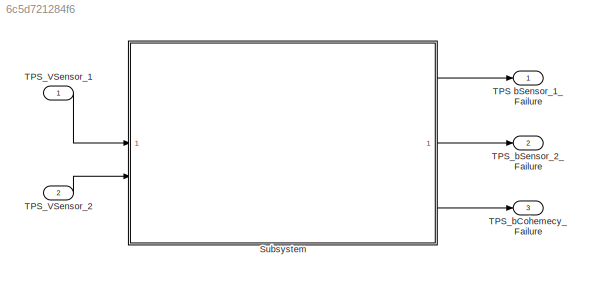
MODEL slx_6c5d721284f6
KIND model
CONFIG AbsTol = auto
CONFIG EnableMultiTasking = off
CONFIG FixedStep = auto
CONFIG MaxStep = auto
CONFIG MinStep = auto
CONFIG RelTol = 1e-3
CONFIG SampleTimeConstraint = Unconstrained
CONFIG SolverName = VariableStepAuto
CONFIG StartTime = 0.0
CONFIG StopTime = 10
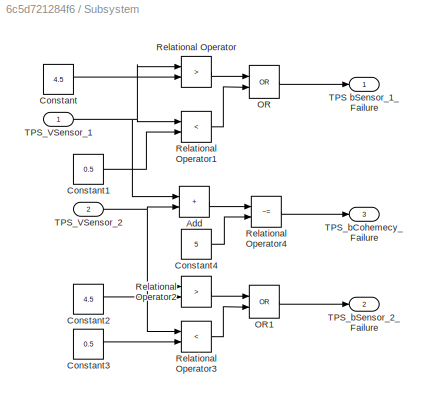
BLOCK [SubSystem] Subsystem
BLOCK [Sum] Subsystem/Add
  IconShape = rectangular
BLOCK [Constant] Subsystem/Constant
  Value = 4.5
BLOCK [Constant] Subsystem/Constant1
  Value = 0.5
BLOCK [Constant] Subsystem/Constant2
  Value = 4.5
BLOCK [Constant] Subsystem/Constant3
  Value = 0.5
BLOCK [Constant] Subsystem/Constant4
  Value = 5
BLOCK [Logic] Subsystem/OR
  AllPortsSameDT = off
  Operator = OR
  OutDataTypeStr = boolean
BLOCK [Logic] Subsystem/OR1
  AllPortsSameDT = off
  Operator = OR
  OutDataTypeStr = boolean
BLOCK [RelationalOperator] Subsystem/Relational Operator
  InputSameDT = off
  Operator = >
  OutDataTypeStr = boolean
  RndMeth = Simplest
BLOCK [RelationalOperator] Subsystem/Relational Operator1
  InputSameDT = off
  Operator = <
  OutDataTypeStr = boolean
  RndMeth = Simplest
BLOCK [RelationalOperator] Subsystem/Relational Operator2
  InputSameDT = off
  Operator = >
  OutDataTypeStr = boolean
  RndMeth = Simplest
BLOCK [RelationalOperator] Subsystem/Relational Operator3
  InputSameDT = off
  Operator = <
  OutDataTypeStr = boolean
  RndMeth = Simplest
BLOCK [RelationalOperator] Subsystem/Relational Operator4
  InputSameDT = off
  Operator = ~=
  OutDataTypeStr = boolean
  RndMeth = Simplest
BLOCK [Outport] Subsystem/TPS bSensor_1_Failure
  OutDataTypeStr = boolean
BLOCK [Inport] Subsystem/TPS_VSensor_1
  OutDataTypeStr = single
BLOCK [Inport] Subsystem/TPS_VSensor_2
  OutDataTypeStr = single
  Port = 2
BLOCK [Outport] Subsystem/TPS_bCohemecy_Failure
  OutDataTypeStr = boolean
  Port = 3
BLOCK [Outport] Subsystem/TPS_bSensor_2_Failure
  OutDataTypeStr = boolean
  Port = 2
BLOCK [Outport] TPS bSensor_1_Failure
  OutDataTypeStr = boolean
BLOCK [Inport] TPS_VSensor_1
  OutDataTypeStr = single
BLOCK [Inport] TPS_VSensor_2
  OutDataTypeStr = single
  Port = 2
BLOCK [Outport] TPS_bCohemecy_Failure
  OutDataTypeStr = boolean
  Port = 3
BLOCK [Outport] TPS_bSensor_2_Failure
  OutDataTypeStr = boolean
  Port = 2
LINE Subsystem/Add:1 -> Subsystem/Relational Operator4:1
LINE Subsystem/Constant1:1 -> Subsystem/Relational Operator1:2
LINE Subsystem/Constant2:1 -> Subsystem/Relational Operator2:2
LINE Subsystem/Constant3:1 -> Subsystem/Relational Operator3:2
LINE Subsystem/Constant4:1 -> Subsystem/Relational Operator4:2
LINE Subsystem/Constant:1 -> Subsystem/Relational Operator:2
LINE Subsystem/OR1:1 -> Subsystem/TPS_bSensor_2_Failure:1
LINE Subsystem/OR:1 -> Subsystem/TPS bSensor_1_Failure:1
LINE Subsystem/Relational Operator1:1 -> Subsystem/OR:2
LINE Subsystem/Relational Operator2:1 -> Subsystem/OR1:1
LINE Subsystem/Relational Operator3:1 -> Subsystem/OR1:2
LINE Subsystem/Relational Operator4:1 -> Subsystem/TPS_bCohemecy_Failure:1
LINE Subsystem/Relational Operator:1 -> Subsystem/OR:1
NET Subsystem/TPS_VSensor_1:1 -> Subsystem/Add:1, Subsystem/Relational Operator1:1, Subsystem/Relational Operator:1
NET Subsystem/TPS_VSensor_2:1 -> Subsystem/Add:2, Subsystem/Relational Operator2:1, Subsystem/Relational Operator3:1
LINE Subsystem:1 -> TPS bSensor_1_Failure:1
LINE Subsystem:2 -> TPS_bSensor_2_Failure:1
LINE Subsystem:3 -> TPS_bCohemecy_Failure:1
LINE TPS_VSensor_1:1 -> Subsystem:1
LINE TPS_VSensor_2:1 -> Subsystem:2
note: NET lines group one-source signal fan-out (src -> all destinations, sorted); 1:1 wires keep LINE
